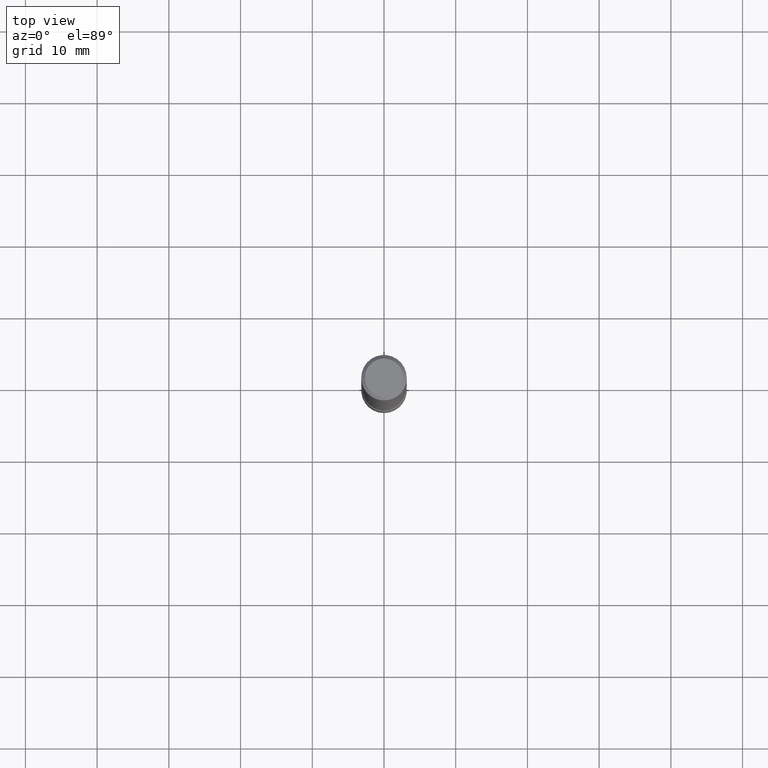
[diagram: clean part render]
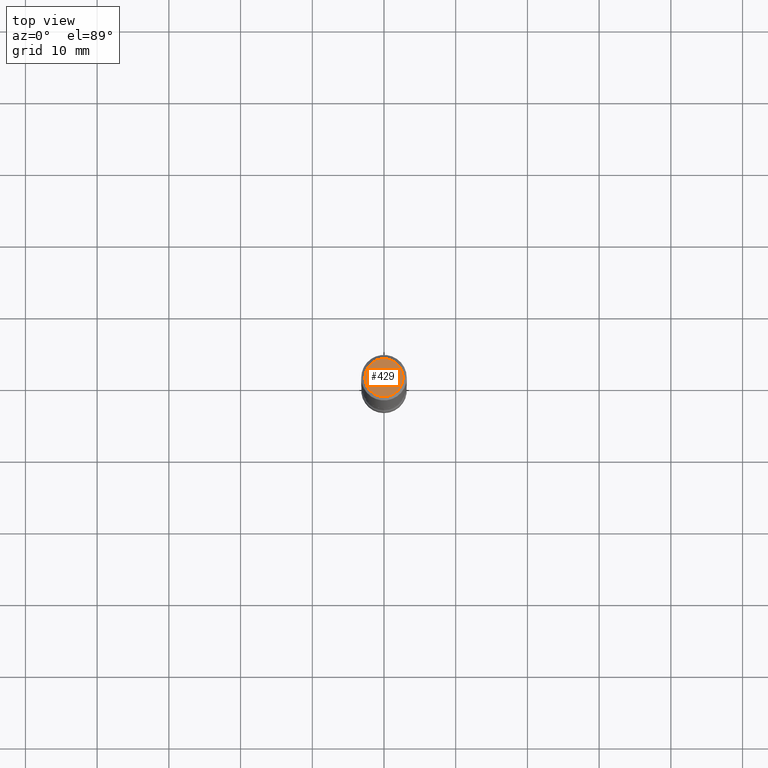
[diagram: same view with one face highlighted and labeled with its STEP entity id]
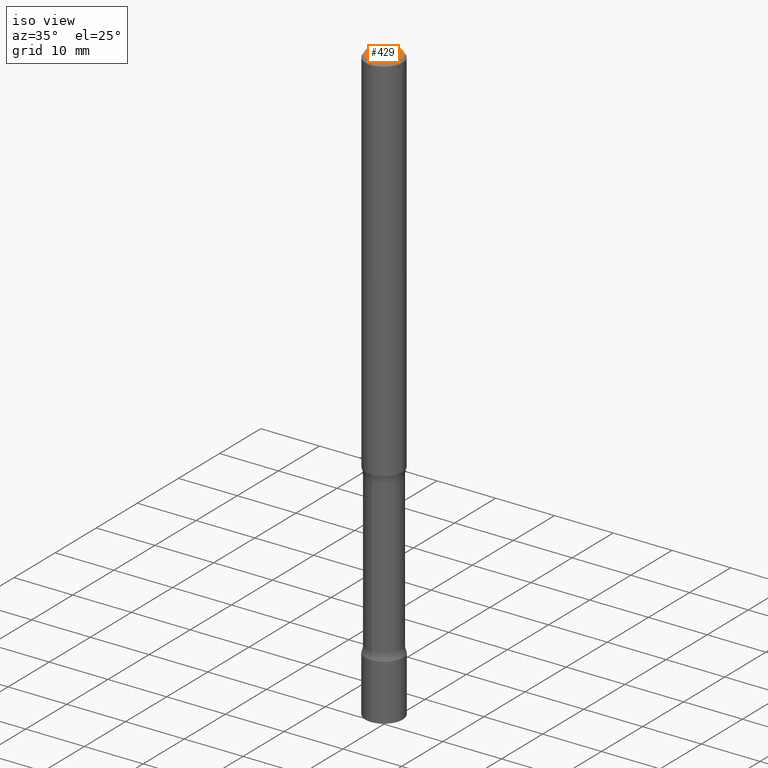
[diagram: same view with one face highlighted and labeled with its STEP entity id]
A machine part, top view. The second image highlights one B-rep face of the part: STEP entity #429.
A second angle (iso view) of the same face is appended — the face is thin or edge-on in the first view.
In plain terms, the highlighted planar face has unit normal (0, -0, -1).
Its self-contained STEP definition (entity closure, byte-faithful):
#20 = CARTESIAN_POINT ( 'NONE',  ( -0.1049999999999997047, 7.681258945454870110E-16, -5.249639473182151863E-30 ) ) ;
#22 = CARTESIAN_POINT ( 'NONE',  ( 0.000000000000000000, 0.000000000000000000, 0.000000000000000000 ) ) ;
#52 = DIRECTION ( 'NONE',  ( 1.000000000000000000, -6.982962677686265922E-15, 4.876176775795935793E-29 ) ) ;
#79 = CIRCLE ( 'NONE', #249, 0.1049999999999997047 ) ;
#93 = PLANE ( 'NONE',  #435 ) ;
#135 = EDGE_CURVE ( 'NONE', #273, #389, #214, .T. ) ;
#153 = ORIENTED_EDGE ( 'NONE', *, *, #473, .T. ) ;
#183 = EDGE_LOOP ( 'NONE', ( #428, #153 ) ) ;
#214 = CIRCLE ( 'NONE', #258, 0.1049999999999997047 ) ;
#216 = DIRECTION ( 'NONE',  ( -2.445468806185136597E-29, 3.491481338843145583E-15, 1.000000000000000000 ) ) ;
#239 = DIRECTION ( 'NONE',  ( 2.438088387897960049E-29, -3.491481338843145188E-15, -1.000000000000000000 ) ) ;
#249 = AXIS2_PLACEMENT_3D ( 'NONE', #22, #334, #52 ) ;
#258 = AXIS2_PLACEMENT_3D ( 'NONE', #464, #216, #457 ) ;
#273 = VERTEX_POINT ( 'NONE', #20 ) ;
#334 = DIRECTION ( 'NONE',  ( -2.445468806185136597E-29, 3.491481338843145583E-15, 1.000000000000000000 ) ) ;
#389 = VERTEX_POINT ( 'NONE', #466 ) ;
#428 = ORIENTED_EDGE ( 'NONE', *, *, #135, .T. ) ;
#429 = ADVANCED_FACE ( 'NONE', ( #448 ), #93, .F. ) ;
#435 = AXIS2_PLACEMENT_3D ( 'NONE', #491, #239, #493 ) ;
#448 = FACE_OUTER_BOUND ( 'NONE', #183, .T. ) ;
#457 = DIRECTION ( 'NONE',  ( 1.000000000000000000, -6.982962677686265922E-15, 4.876176775795935793E-29 ) ) ;
#464 = CARTESIAN_POINT ( 'NONE',  ( 0.000000000000000000, 0.000000000000000000, 0.000000000000000000 ) ) ;
#466 = CARTESIAN_POINT ( 'NONE',  ( 0.1049999999999997047, -8.238720831321554950E-16, 5.444276250344135351E-30 ) ) ;
#473 = EDGE_CURVE ( 'NONE', #389, #273, #79, .T. ) ;
#491 = CARTESIAN_POINT ( 'NONE',  ( 7.332110811570558550E-16, 0.1049999999999997047, -3.666055405785292587E-16 ) ) ;
#493 = DIRECTION ( 'NONE',  ( -1.000000000000000000, 6.982962677686265922E-15, -4.876176775795935793E-29 ) ) ;